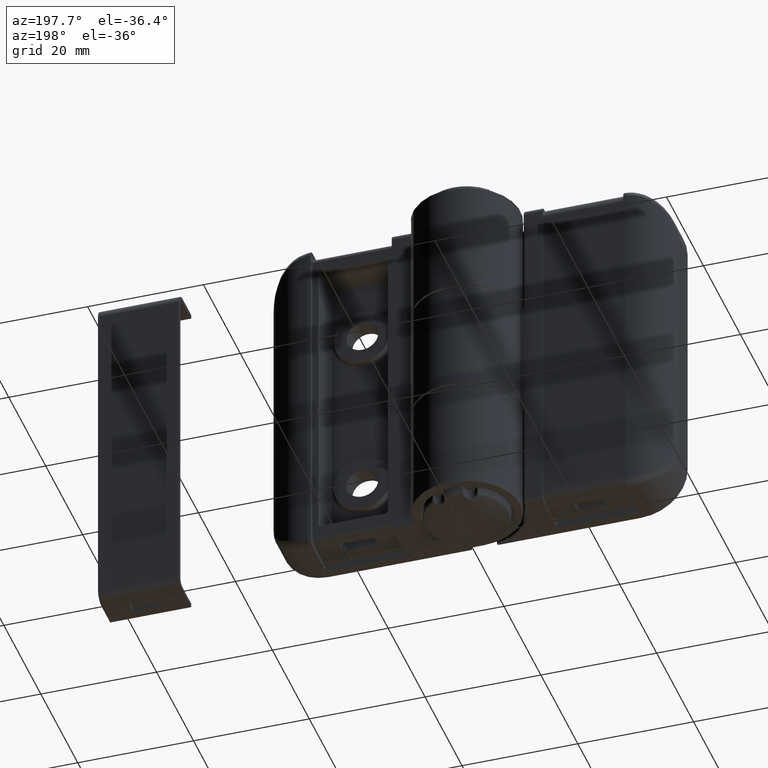
[diagram: clean part render]
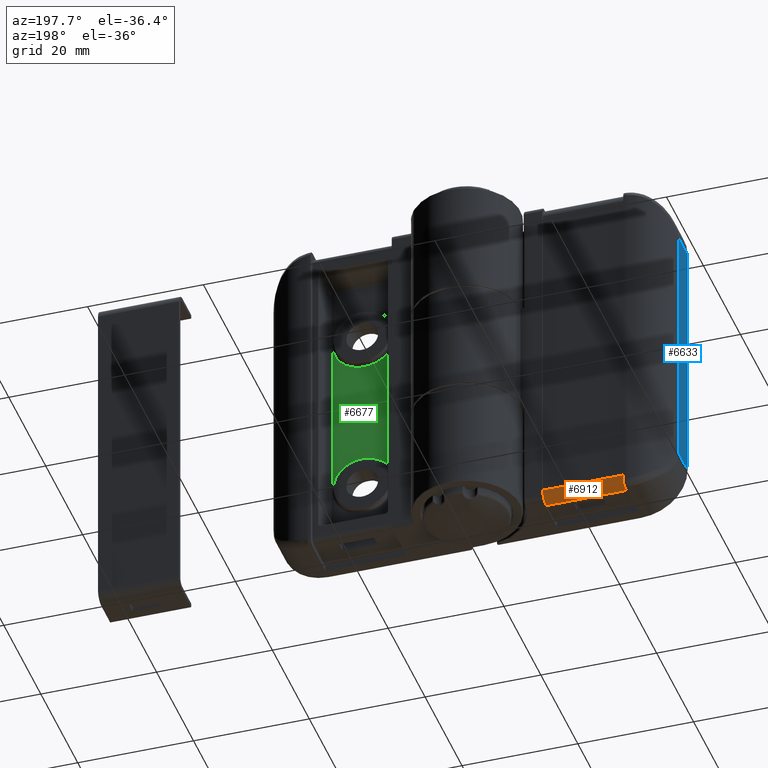
[diagram: same view with three faces highlighted in distinct colors, each labeled with its STEP entity id]
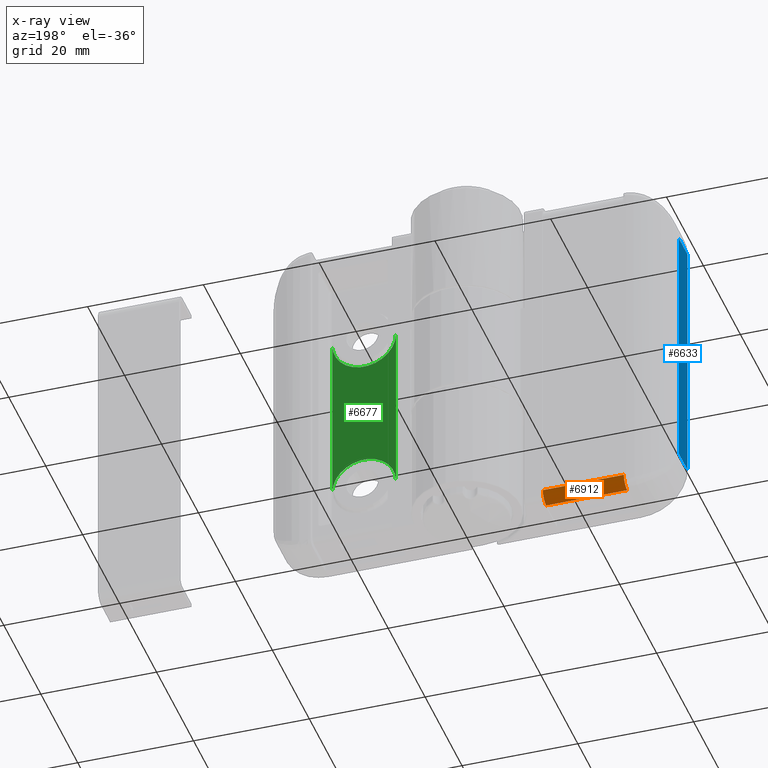
[diagram: x-ray of the same camera — body ghosted, the three highlighted faces saturated]
A machine part, auxiliary view with three faces highlighted in distinct colors.
The next image is the same camera in x-ray (body ghosted, the three faces saturated) — at least one of them is partly hidden behind the body in this view.
Their STEP definitions:

[orange] entity #6912 — the highlighted cylindrical surface (edge-blend (fillet) strip) has radius 1.85 mm, axis along (1, -0, -0).
#881=LINE('',#21791,#1297);
#882=LINE('',#21793,#1298);
#1297=VECTOR('',#9361,14.);
#1298=VECTOR('',#9364,14.);
#1515=CYLINDRICAL_SURFACE('',#7636,1.85);
#1860=FACE_OUTER_BOUND('',#2319,.T.);
#2319=EDGE_LOOP('',(#6026,#6027,#6028,#6029));
#2743=CIRCLE('',#7626,1.85);
#2744=CIRCLE('',#7628,1.85);
#3278=VERTEX_POINT('',#21501);
#3279=VERTEX_POINT('',#21503);
#3284=VERTEX_POINT('',#21514);
#3285=VERTEX_POINT('',#21516);
#4226=EDGE_CURVE('',#3279,#3278,#2743,.T.);
#4232=EDGE_CURVE('',#3284,#3285,#2744,.T.);
#4257=EDGE_CURVE('',#3278,#3285,#881,.T.);
#4258=EDGE_CURVE('',#3279,#3284,#882,.T.);
#6026=ORIENTED_EDGE('',*,*,#4226,.T.);
#6027=ORIENTED_EDGE('',*,*,#4257,.T.);
#6028=ORIENTED_EDGE('',*,*,#4232,.F.);
#6029=ORIENTED_EDGE('',*,*,#4258,.F.);
#6912=ADVANCED_FACE('',(#1860),#1515,.T.);
#7626=AXIS2_PLACEMENT_3D('',#21504,#9321,#9322);
#7628=AXIS2_PLACEMENT_3D('',#21517,#9330,#9331);
#7636=AXIS2_PLACEMENT_3D('',#21792,#9362,#9363);
#9321=DIRECTION('center_axis',(0.,0.,1.));
#9322=DIRECTION('ref_axis',(1.,0.,0.));
#9330=DIRECTION('center_axis',(0.,0.,1.));
#9331=DIRECTION('ref_axis',(1.,0.,0.));
#9361=DIRECTION('',(0.,0.,1.));
#9362=DIRECTION('center_axis',(0.,0.,1.));
#9363=DIRECTION('ref_axis',(1.,0.,0.));
#9364=DIRECTION('',(0.,0.,1.));
#21501=CARTESIAN_POINT('',(3.3,-28.,-0.5));
#21503=CARTESIAN_POINT('',(1.45,-29.85,-0.5));
#21504=CARTESIAN_POINT('Origin',(1.45,-28.,-0.5));
#21514=CARTESIAN_POINT('',(1.45,-29.85,13.5));
#21516=CARTESIAN_POINT('',(3.3,-28.,13.5));
#21517=CARTESIAN_POINT('Origin',(1.45,-28.,13.5));
#21791=CARTESIAN_POINT('',(3.3,-28.,0.));
#21792=CARTESIAN_POINT('Origin',(1.45,-28.,0.));
#21793=CARTESIAN_POINT('',(1.45,-29.85,0.));

[blue] entity #6633 — the highlighted planar face has unit normal (-1, 0, 0).
#437=PLANE('',#7116);
#623=LINE('',#10227,#1039);
#624=LINE('',#10353,#1040);
#626=LINE('',#10358,#1042);
#627=LINE('',#10359,#1043);
#1039=VECTOR('',#8049,44.);
#1040=VECTOR('',#8062,4.65565872763132);
#1042=VECTOR('',#8068,4.65565872763131);
#1043=VECTOR('',#8069,44.);
#1581=FACE_OUTER_BOUND('',#2005,.T.);
#2005=EDGE_LOOP('',(#4715,#4716,#4717,#4718));
#2891=VERTEX_POINT('',#10119);
#2893=VERTEX_POINT('',#10223);
#2899=VERTEX_POINT('',#10352);
#2900=VERTEX_POINT('',#10357);
#3601=EDGE_CURVE('',#2891,#2893,#623,.T.);
#3608=EDGE_CURVE('',#2893,#2899,#624,.T.);
#3611=EDGE_CURVE('',#2891,#2900,#626,.T.);
#3612=EDGE_CURVE('',#2899,#2900,#627,.T.);
#4715=ORIENTED_EDGE('',*,*,#3601,.F.);
#4716=ORIENTED_EDGE('',*,*,#3611,.T.);
#4717=ORIENTED_EDGE('',*,*,#3612,.F.);
#4718=ORIENTED_EDGE('',*,*,#3608,.F.);
#6633=ADVANCED_FACE('',(#1581),#437,.T.);
#7116=AXIS2_PLACEMENT_3D('',#10356,#8066,#8067);
#8049=DIRECTION('',(0.,0.,-1.));
#8062=DIRECTION('',(0.,-1.,0.));
#8066=DIRECTION('center_axis',(1.,0.,0.));
#8067=DIRECTION('ref_axis',(0.,1.,0.));
#8068=DIRECTION('',(0.,-1.,0.));
#8069=DIRECTION('',(0.,0.,1.));
#10119=CARTESIAN_POINT('',(35.,-5.09434127236869,52.));
#10223=CARTESIAN_POINT('',(35.,-5.09434127236868,8.));
#10227=CARTESIAN_POINT('',(35.,-5.09434127236868,0.));
#10352=CARTESIAN_POINT('',(35.,-9.75,8.));
#10353=CARTESIAN_POINT('',(35.,-9.75,8.));
#10356=CARTESIAN_POINT('Origin',(35.,-9.75,0.));
#10357=CARTESIAN_POINT('',(35.,-9.75,52.));
#10358=CARTESIAN_POINT('',(35.,-9.75,52.));
#10359=CARTESIAN_POINT('',(35.,-9.75,0.));

[green] entity #6677 — the highlighted planar face has unit normal (-0, 1, 0).
#468=PLANE('',#7180);
#687=LINE('',#10533,#1103);
#688=LINE('',#10536,#1104);
#1103=VECTOR('',#8257,30.);
#1104=VECTOR('',#8260,30.);
#1625=FACE_OUTER_BOUND('',#2062,.T.);
#2062=EDGE_LOOP('',(#4919,#4920,#4921,#4922));
#2498=CIRCLE('',#7179,5.5);
#2499=CIRCLE('',#7181,5.5);
#2948=VERTEX_POINT('',#10527);
#2949=VERTEX_POINT('',#10528);
#2950=VERTEX_POINT('',#10532);
#2951=VERTEX_POINT('',#10534);
#3690=EDGE_CURVE('',#2949,#2948,#2498,.T.);
#3691=EDGE_CURVE('',#2950,#2949,#687,.T.);
#3692=EDGE_CURVE('',#2951,#2950,#2499,.T.);
#3693=EDGE_CURVE('',#2948,#2951,#688,.T.);
#4919=ORIENTED_EDGE('',*,*,#3690,.F.);
#4920=ORIENTED_EDGE('',*,*,#3691,.F.);
#4921=ORIENTED_EDGE('',*,*,#3692,.F.);
#4922=ORIENTED_EDGE('',*,*,#3693,.F.);
#6677=ADVANCED_FACE('',(#1625),#468,.T.);
#7179=AXIS2_PLACEMENT_3D('',#10530,#8253,#8254);
#7180=AXIS2_PLACEMENT_3D('',#10531,#8255,#8256);
#7181=AXIS2_PLACEMENT_3D('',#10535,#8258,#8259);
#8253=DIRECTION('center_axis',(0.,1.,0.));
#8254=DIRECTION('ref_axis',(1.,0.,0.));
#8255=DIRECTION('center_axis',(0.,1.,0.));
#8256=DIRECTION('ref_axis',(1.,0.,0.));
#8257=DIRECTION('',(0.,0.,1.));
#8258=DIRECTION('center_axis',(0.,1.,0.));
#8259=DIRECTION('ref_axis',(-1.,0.,0.));
#8260=DIRECTION('',(0.,0.,-1.));
#10527=CARTESIAN_POINT('',(14.5,-7.,45.));
#10528=CARTESIAN_POINT('',(25.5,-7.,45.));
#10530=CARTESIAN_POINT('Origin',(20.,-7.,45.));
#10531=CARTESIAN_POINT('Origin',(0.,-7.,0.));
#10532=CARTESIAN_POINT('',(25.5,-7.,15.));
#10533=CARTESIAN_POINT('',(25.5,-7.,28.));
#10534=CARTESIAN_POINT('',(14.5,-7.,15.));
#10535=CARTESIAN_POINT('Origin',(20.,-7.,15.));
#10536=CARTESIAN_POINT('',(14.5,-7.,2.));